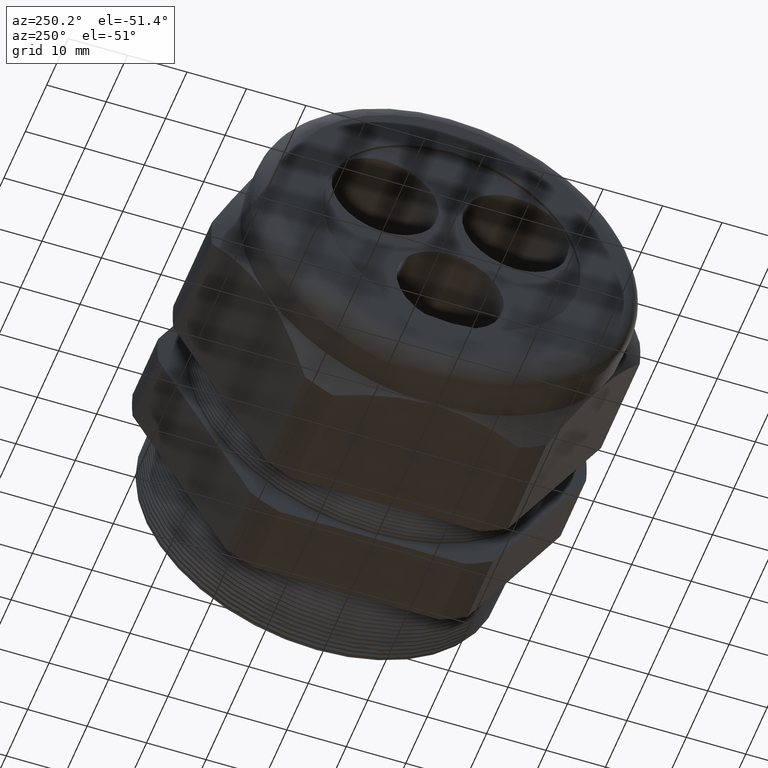
[diagram: clean part render]
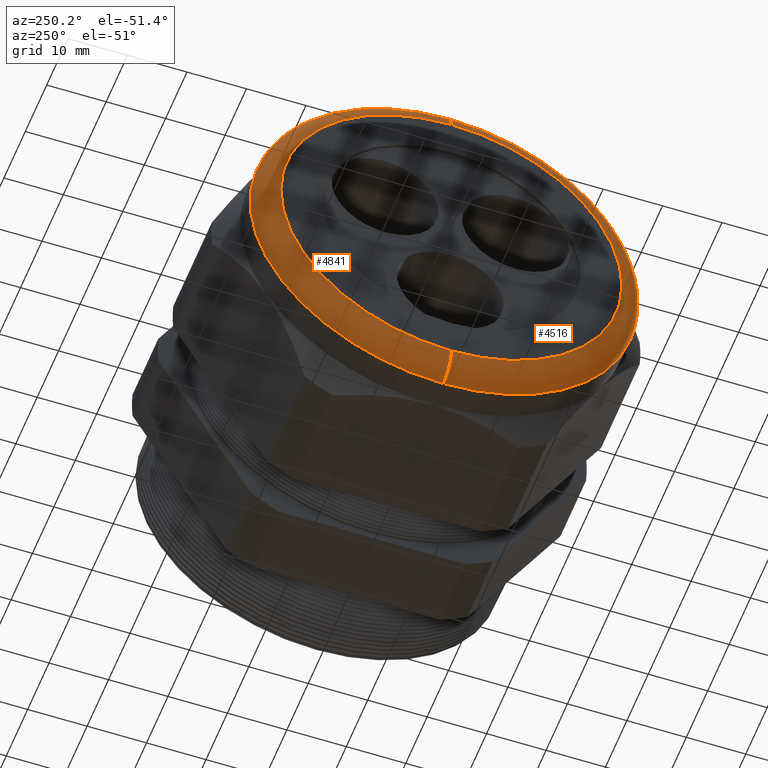
[diagram: same view with one multi-face feature highlighted, each face labeled with its STEP entity id]
A machine part, auxiliary view. The highlighted faces form ONE feature: a constant-radius fillet chain: 2 tangent blend faces with common blend radius 3.81 mm. The faces share edges in the B-rep.
Their STEP definitions:
[1] entity #4516 (Torus):
#178 = EDGE_CURVE ( 'NONE', #4624, #4621, #737, .T. ) ;
#733 = DIRECTION ( 'NONE',  ( 0.0000000000000000000, 0.0000000000000000000, 1.000000000000000000 ) ) ;
#734 = DIRECTION ( 'NONE',  ( -1.000000000000000000, 0.0000000000000000000, 0.0000000000000000000 ) ) ;
#735 = CARTESIAN_POINT ( 'NONE',  ( -2.239999999999999800, 0.0000000000000000000, 0.0000000000000000000 ) ) ;
#736 = AXIS2_PLACEMENT_3D ( 'NONE', #735, #734, #733 ) ;
#737 = CIRCLE ( 'NONE', #736, 1.129999999999999900 ) ;
#2102 = DIRECTION ( 'NONE',  ( 0.0000000000000000000, 0.0000000000000000000, 1.000000000000000000 ) ) ;
#2103 = DIRECTION ( 'NONE',  ( -1.000000000000000000, 0.0000000000000000000, 0.0000000000000000000 ) ) ;
#2104 = CARTESIAN_POINT ( 'NONE',  ( -2.089999999999999400, 0.0000000000000000000, 0.0000000000000000000 ) ) ;
#2105 = AXIS2_PLACEMENT_3D ( 'NONE', #2104, #2103, #2102 ) ;
#2107 = TOROIDAL_SURFACE ( 'NONE', #2105, 1.129999999999999900, 0.1499999999999999900 ) ;
#2108 = FACE_OUTER_BOUND ( 'NONE', #4672, .T. ) ;
#2212 = DIRECTION ( 'NONE',  ( 0.0000000000000000000, -1.000000000000000000, 0.0000000000000000000 ) ) ;
#2213 = CARTESIAN_POINT ( 'NONE',  ( -2.089999999999999400, 0.0000000000000000000, 1.129999999999999900 ) ) ;
#2214 = AXIS2_PLACEMENT_3D ( 'NONE', #2213, #2212, #2276 ) ;
#2219 = CIRCLE ( 'NONE', #2214, 0.1500000000000000500 ) ;
#2240 = CARTESIAN_POINT ( 'NONE',  ( -2.239999999999999800, 1.475699392972560400E-016, -1.129999999999999900 ) ) ;
#2241 = CARTESIAN_POINT ( 'NONE',  ( -2.239999999999999800, 0.0000000000000000000, 1.129999999999999900 ) ) ;
#2249 = DIRECTION ( 'NONE',  ( 0.0000000000000000000, -1.224646799147352500E-016, 1.000000000000000000 ) ) ;
#2250 = DIRECTION ( 'NONE',  ( 0.0000000000000000000, 1.000000000000000000, 1.224646799147353200E-016 ) ) ;
#2251 = CARTESIAN_POINT ( 'NONE',  ( -2.089999999999999400, 1.383850883036509000E-016, -1.129999999999999900 ) ) ;
#2252 = AXIS2_PLACEMENT_3D ( 'NONE', #2251, #2250, #2249 ) ;
#2253 = CIRCLE ( 'NONE', #2252, 0.1500000000000000500 ) ;
#2276 = DIRECTION ( 'NONE',  ( 0.0000000000000000000, 0.0000000000000000000, -1.000000000000000000 ) ) ;
#2586 = CARTESIAN_POINT ( 'NONE',  ( -2.089999999999999400, 1.567547902908612300E-016, 1.280000000000000000 ) ) ;
#2587 = CARTESIAN_POINT ( 'NONE',  ( -2.089999999999999400, 0.0000000000000000000, -1.280000000000000000 ) ) ;
#2797 = DIRECTION ( 'NONE',  ( 0.0000000000000000000, 0.0000000000000000000, 1.000000000000000000 ) ) ;
#2798 = DIRECTION ( 'NONE',  ( 1.000000000000000000, 0.0000000000000000000, 0.0000000000000000000 ) ) ;
#2799 = CARTESIAN_POINT ( 'NONE',  ( -2.089999999999999400, 0.0000000000000000000, 0.0000000000000000000 ) ) ;
#2800 = AXIS2_PLACEMENT_3D ( 'NONE', #2799, #2798, #2797 ) ;
#2801 = CIRCLE ( 'NONE', #2800, 1.280000000000000000 ) ;
#4516 = ADVANCED_FACE ( 'NONE', ( #2108 ), #2107, .T. ) ;
#4534 = ORIENTED_EDGE ( 'NONE', *, *, #4636, .T. ) ;
#4538 = ORIENTED_EDGE ( 'NONE', *, *, #178, .F. ) ;
#4539 = ORIENTED_EDGE ( 'NONE', *, *, #4947, .F. ) ;
#4621 = VERTEX_POINT ( 'NONE', #2241 ) ;
#4624 = VERTEX_POINT ( 'NONE', #2240 ) ;
#4636 = EDGE_CURVE ( 'NONE', #4815, #4621, #2219, .T. ) ;
#4650 = EDGE_CURVE ( 'NONE', #4813, #4624, #2253, .T. ) ;
#4671 = ORIENTED_EDGE ( 'NONE', *, *, #4650, .F. ) ;
#4672 = EDGE_LOOP ( 'NONE', ( #4671, #4539, #4534, #4538 ) ) ;
#4813 = VERTEX_POINT ( 'NONE', #2587 ) ;
#4815 = VERTEX_POINT ( 'NONE', #2586 ) ;
#4947 = EDGE_CURVE ( 'NONE', #4815, #4813, #2801, .T. ) ;
[2] entity #4841 (Torus):
#2212 = DIRECTION ( 'NONE',  ( 0.0000000000000000000, -1.000000000000000000, 0.0000000000000000000 ) ) ;
#2213 = CARTESIAN_POINT ( 'NONE',  ( -2.089999999999999400, 0.0000000000000000000, 1.129999999999999900 ) ) ;
#2214 = AXIS2_PLACEMENT_3D ( 'NONE', #2213, #2212, #2276 ) ;
#2219 = CIRCLE ( 'NONE', #2214, 0.1500000000000000500 ) ;
#2240 = CARTESIAN_POINT ( 'NONE',  ( -2.239999999999999800, 1.475699392972560400E-016, -1.129999999999999900 ) ) ;
#2241 = CARTESIAN_POINT ( 'NONE',  ( -2.239999999999999800, 0.0000000000000000000, 1.129999999999999900 ) ) ;
#2249 = DIRECTION ( 'NONE',  ( 0.0000000000000000000, -1.224646799147352500E-016, 1.000000000000000000 ) ) ;
#2250 = DIRECTION ( 'NONE',  ( 0.0000000000000000000, 1.000000000000000000, 1.224646799147353200E-016 ) ) ;
#2251 = CARTESIAN_POINT ( 'NONE',  ( -2.089999999999999400, 1.383850883036509000E-016, -1.129999999999999900 ) ) ;
#2252 = AXIS2_PLACEMENT_3D ( 'NONE', #2251, #2250, #2249 ) ;
#2253 = CIRCLE ( 'NONE', #2252, 0.1500000000000000500 ) ;
#2270 = DIRECTION ( 'NONE',  ( 0.0000000000000000000, 0.0000000000000000000, 1.000000000000000000 ) ) ;
#2271 = DIRECTION ( 'NONE',  ( -1.000000000000000000, 0.0000000000000000000, 0.0000000000000000000 ) ) ;
#2272 = CARTESIAN_POINT ( 'NONE',  ( -2.239999999999999800, 0.0000000000000000000, 0.0000000000000000000 ) ) ;
#2273 = AXIS2_PLACEMENT_3D ( 'NONE', #2272, #2271, #2270 ) ;
#2274 = CIRCLE ( 'NONE', #2273, 1.129999999999999900 ) ;
#2276 = DIRECTION ( 'NONE',  ( 0.0000000000000000000, 0.0000000000000000000, -1.000000000000000000 ) ) ;
#2581 = DIRECTION ( 'NONE',  ( 0.0000000000000000000, 0.0000000000000000000, 1.000000000000000000 ) ) ;
#2582 = DIRECTION ( 'NONE',  ( 1.000000000000000000, 0.0000000000000000000, 0.0000000000000000000 ) ) ;
#2583 = CARTESIAN_POINT ( 'NONE',  ( -2.089999999999999400, 0.0000000000000000000, 0.0000000000000000000 ) ) ;
#2584 = AXIS2_PLACEMENT_3D ( 'NONE', #2583, #2582, #2581 ) ;
#2585 = CIRCLE ( 'NONE', #2584, 1.280000000000000000 ) ;
#2586 = CARTESIAN_POINT ( 'NONE',  ( -2.089999999999999400, 1.567547902908612300E-016, 1.280000000000000000 ) ) ;
#2587 = CARTESIAN_POINT ( 'NONE',  ( -2.089999999999999400, 0.0000000000000000000, -1.280000000000000000 ) ) ;
#2606 = DIRECTION ( 'NONE',  ( 0.0000000000000000000, 0.0000000000000000000, 1.000000000000000000 ) ) ;
#2607 = DIRECTION ( 'NONE',  ( -1.000000000000000000, 0.0000000000000000000, 0.0000000000000000000 ) ) ;
#2608 = AXIS2_PLACEMENT_3D ( 'NONE', #2610, #2607, #2606 ) ;
#2609 = TOROIDAL_SURFACE ( 'NONE', #2608, 1.129999999999999900, 0.1499999999999999900 ) ;
#2610 = CARTESIAN_POINT ( 'NONE',  ( -2.089999999999999400, 0.0000000000000000000, 0.0000000000000000000 ) ) ;
#2611 = FACE_OUTER_BOUND ( 'NONE', #4833, .T. ) ;
#4621 = VERTEX_POINT ( 'NONE', #2241 ) ;
#4624 = VERTEX_POINT ( 'NONE', #2240 ) ;
#4635 = ORIENTED_EDGE ( 'NONE', *, *, #4636, .F. ) ;
#4636 = EDGE_CURVE ( 'NONE', #4815, #4621, #2219, .T. ) ;
#4638 = EDGE_CURVE ( 'NONE', #4621, #4624, #2274, .T. ) ;
#4640 = ORIENTED_EDGE ( 'NONE', *, *, #4638, .F. ) ;
#4648 = ORIENTED_EDGE ( 'NONE', *, *, #4650, .T. ) ;
#4650 = EDGE_CURVE ( 'NONE', #4813, #4624, #2253, .T. ) ;
#4813 = VERTEX_POINT ( 'NONE', #2587 ) ;
#4815 = VERTEX_POINT ( 'NONE', #2586 ) ;
#4816 = EDGE_CURVE ( 'NONE', #4813, #4815, #2585, .T. ) ;
#4818 = ORIENTED_EDGE ( 'NONE', *, *, #4816, .F. ) ;
#4833 = EDGE_LOOP ( 'NONE', ( #4818, #4648, #4640, #4635 ) ) ;
#4841 = ADVANCED_FACE ( 'NONE', ( #2611 ), #2609, .T. ) ;